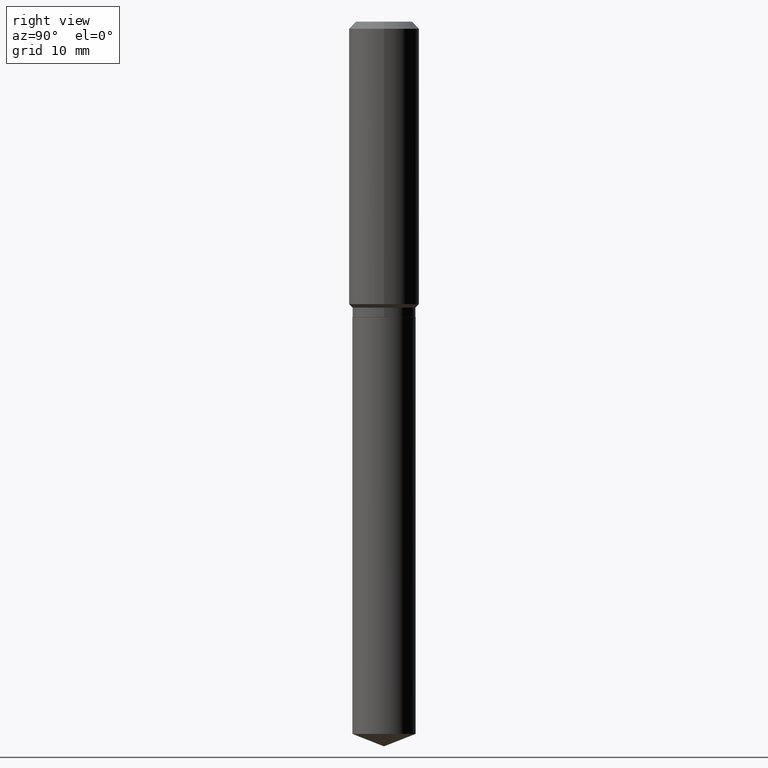
[diagram: clean part render]
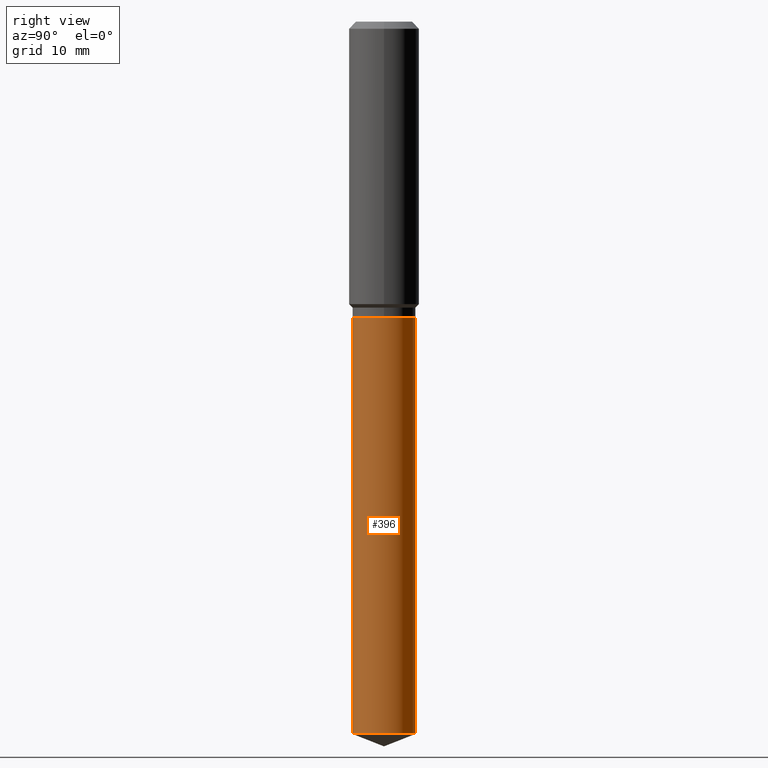
[diagram: same view with one face highlighted and labeled with its STEP entity id]
A machine part, right view. The second image highlights one B-rep face of the part: STEP entity #396.
In plain terms, the highlighted cylindrical surface (edge-blend (fillet) strip) has radius 4.4996 mm, axis along (-0, 0, 1).
Its self-contained STEP definition (entity closure, byte-faithful):
#5 = CARTESIAN_POINT ( 'NONE',  ( 1.258726456399115114E-15, 0.1771499999999861519, -3.985218759244814279 ) ) ;
#11 = LINE ( 'NONE', #387, #141 ) ;
#30 = ORIENTED_EDGE ( 'NONE', *, *, #462, .F. ) ;
#61 = VERTEX_POINT ( 'NONE', #5 ) ;
#67 = AXIS2_PLACEMENT_3D ( 'NONE', #151, #266, #409 ) ;
#79 = EDGE_CURVE ( 'NONE', #61, #388, #11, .T. ) ;
#89 = ORIENTED_EDGE ( 'NONE', *, *, #79, .T. ) ;
#102 = CARTESIAN_POINT ( 'NONE',  ( 9.745777637762988078E-29, -1.391424607636795182E-14, -3.985218759244813391 ) ) ;
#131 = VECTOR ( 'NONE', #471, 39.37007874015748143 ) ;
#140 = ORIENTED_EDGE ( 'NONE', *, *, #220, .T. ) ;
#141 = VECTOR ( 'NONE', #164, 39.37007874015748143 ) ;
#146 = CARTESIAN_POINT ( 'NONE',  ( -1.237031838352081570E-15, -0.1771500000000057751, -1.653399999999999093 ) ) ;
#151 = CARTESIAN_POINT ( 'NONE',  ( 4.043338124146503856E-29, -5.772815245643255193E-15, -1.653399999999999537 ) ) ;
#152 = CARTESIAN_POINT ( 'NONE',  ( 4.043338124146503856E-29, -5.772815245643255193E-15, -1.653399999999999537 ) ) ;
#155 = CIRCLE ( 'NONE', #67, 0.1771500000000000019 ) ;
#164 = DIRECTION ( 'NONE',  ( -2.445490024045987775E-29, 3.491450953658761522E-15, 1.000000000000000000 ) ) ;
#189 = FACE_OUTER_BOUND ( 'NONE', #368, .T. ) ;
#217 = ORIENTED_EDGE ( 'NONE', *, *, #415, .F. ) ;
#219 = CARTESIAN_POINT ( 'NONE',  ( -1.237031838352081570E-15, -0.1771500000000057751, -1.653399999999999093 ) ) ;
#220 = EDGE_CURVE ( 'NONE', #242, #61, #273, .T. ) ;
#242 = VERTEX_POINT ( 'NONE', #294 ) ;
#266 = DIRECTION ( 'NONE',  ( -2.445490024045987495E-29, 3.491450953658761522E-15, 1.000000000000000000 ) ) ;
#270 = CYLINDRICAL_SURFACE ( 'NONE', #370, 0.1771500000000000019 ) ;
#273 = CIRCLE ( 'NONE', #324, 0.1771500000000000019 ) ;
#294 = CARTESIAN_POINT ( 'NONE',  ( -1.237031838352024575E-15, -0.1771500000000139075, -3.985218759244812947 ) ) ;
#304 = LINE ( 'NONE', #219, #131 ) ;
#310 = DIRECTION ( 'NONE',  ( -2.445490024045987495E-29, 3.491450953658761522E-15, 1.000000000000000000 ) ) ;
#324 = AXIS2_PLACEMENT_3D ( 'NONE', #102, #406, #464 ) ;
#368 = EDGE_LOOP ( 'NONE', ( #140, #89, #217, #30 ) ) ;
#370 = AXIS2_PLACEMENT_3D ( 'NONE', #152, #310, #440 ) ;
#387 = CARTESIAN_POINT ( 'NONE',  ( 1.258726456399057922E-15, 0.1771499999999942565, -1.653400000000000203 ) ) ;
#388 = VERTEX_POINT ( 'NONE', #476 ) ;
#390 = VERTEX_POINT ( 'NONE', #146 ) ;
#396 = ADVANCED_FACE ( 'NONE', ( #189 ), #270, .T. ) ;
#406 = DIRECTION ( 'NONE',  ( -2.445490024045987495E-29, 3.491450953658761522E-15, 1.000000000000000000 ) ) ;
#409 = DIRECTION ( 'NONE',  ( -6.982962677686265922E-15, -1.000000000000000000, 3.084220145260246224E-15 ) ) ;
#415 = EDGE_CURVE ( 'NONE', #390, #388, #155, .T. ) ;
#440 = DIRECTION ( 'NONE',  ( -6.982962677686265922E-15, -1.000000000000000000, 3.084220145260246224E-15 ) ) ;
#462 = EDGE_CURVE ( 'NONE', #242, #390, #304, .T. ) ;
#464 = DIRECTION ( 'NONE',  ( -6.982962677686265922E-15, -1.000000000000000000, 3.084220145260246224E-15 ) ) ;
#471 = DIRECTION ( 'NONE',  ( -2.445490024045987775E-29, 3.491450953658761522E-15, 1.000000000000000000 ) ) ;
#476 = CARTESIAN_POINT ( 'NONE',  ( 1.258726456399115114E-15, 0.1771499999999942565, -1.653400000000000203 ) ) ;